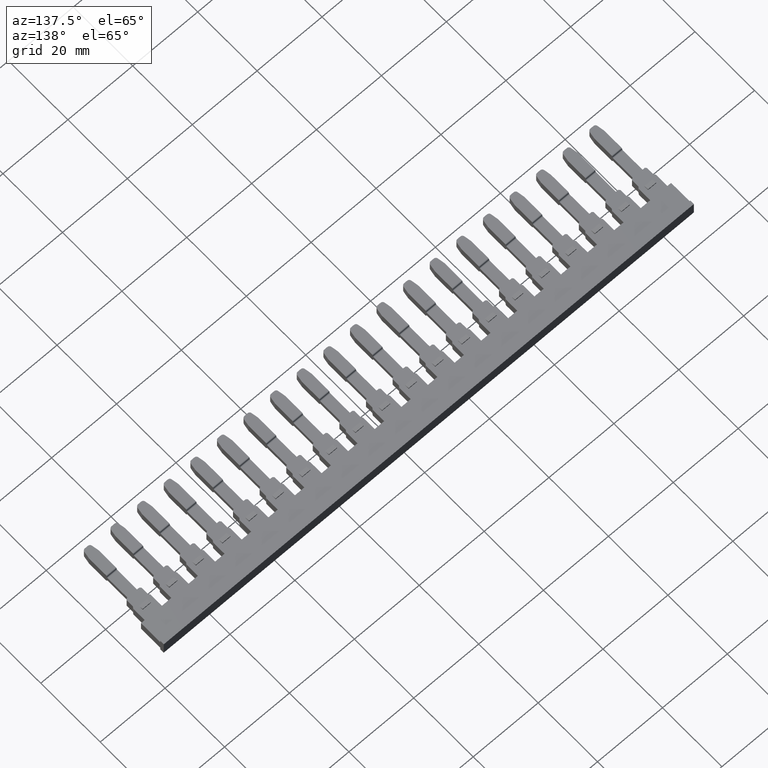
[diagram: clean part render]
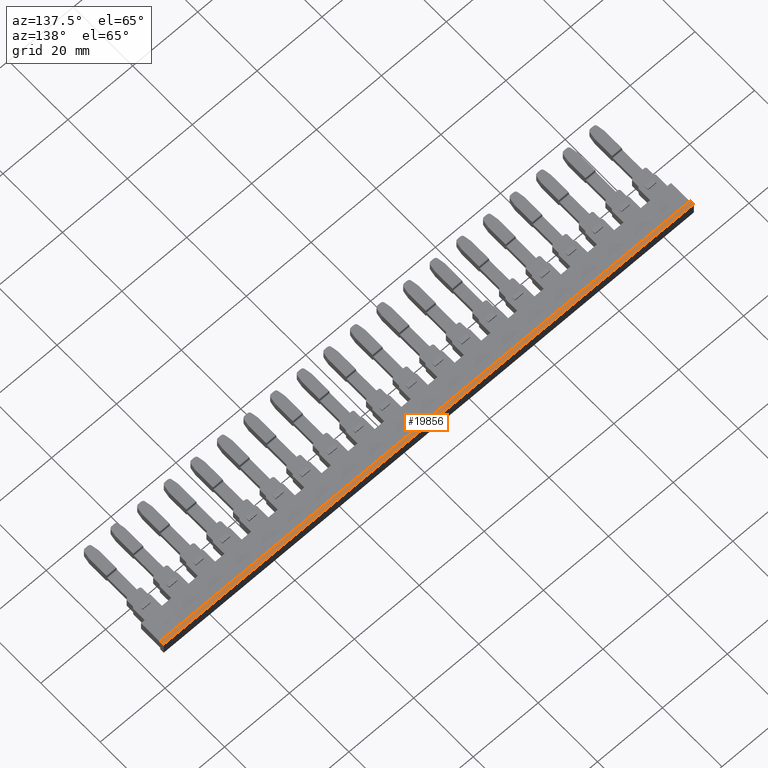
[diagram: same view with one face highlighted and labeled with its STEP entity id]
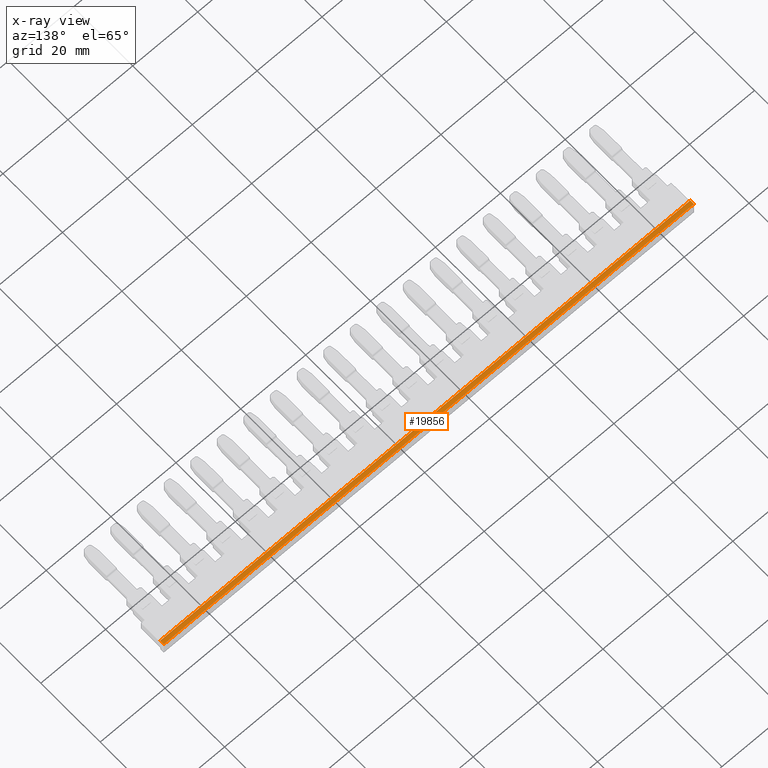
[diagram: x-ray of the same camera — body ghosted, the highlighted face saturated]
A machine part, auxiliary view. The second image highlights one B-rep face of the part: STEP entity #19856.
The next image is the same camera in x-ray: the body ghosted, the highlighted face saturated — about 0% of this face is hidden behind the body in this view.
In plain terms, the highlighted planar face has unit normal (0, 0, 1).
Its self-contained STEP definition (entity closure, byte-faithful):
#1759 = EDGE_CURVE ( 'NONE', #14234, #14112, #11842, .T. ) ;
#1796 = EDGE_CURVE ( 'NONE', #14243, #14234, #11953, .T. ) ;
#1800 = EDGE_CURVE ( 'NONE', #14243, #14134, #11969, .T. ) ;
#1851 = EDGE_CURVE ( 'NONE', #14112, #14134, #12140, .T. ) ;
#4170 = ORIENTED_EDGE ( 'NONE', *, *, #1800, .F. ) ;
#4212 = ORIENTED_EDGE ( 'NONE', *, *, #1851, .T. ) ;
#4275 = ORIENTED_EDGE ( 'NONE', *, *, #1796, .T. ) ;
#4279 = ORIENTED_EDGE ( 'NONE', *, *, #1759, .T. ) ;
#6940 = PLANE ( 'NONE',  #17208 ) ;
#6941 = FACE_OUTER_BOUND ( 'NONE', #17826, .T. ) ;
#6942 = DIRECTION ( 'NONE',  ( 0.0000000000000000000, 0.0000000000000000000, 1.000000000000000000 ) ) ;
#6971 = DIRECTION ( 'NONE',  ( 1.000000000000000000, 0.0000000000000000000, -0.0000000000000000000 ) ) ;
#6980 = CARTESIAN_POINT ( 'NONE',  ( 1130.994470802330200, 672.9078760720548200, 3.750000000000000000 ) ) ;
#9188 = CARTESIAN_POINT ( 'NONE',  ( 991.5944708023300800, 672.9078760720548200, 3.750000000000000000 ) ) ;
#9196 = CARTESIAN_POINT ( 'NONE',  ( 991.5944708023300800, 674.1078760720547500, 3.750000000000000000 ) ) ;
#9275 = CARTESIAN_POINT ( 'NONE',  ( 1154.994472239529600, 672.9078760720548200, 3.750000000000000000 ) ) ;
#9313 = CARTESIAN_POINT ( 'NONE',  ( 1154.994472239529600, 674.1078760720547500, 3.750000000000000000 ) ) ;
#11833 = DIRECTION ( 'NONE',  ( -1.000000000000000000, -0.0000000000000000000, -0.0000000000000000000 ) ) ;
#11842 = LINE ( 'NONE', #11856, #22397 ) ;
#11856 = CARTESIAN_POINT ( 'NONE',  ( 1130.994470802330200, 674.1078760720547500, 3.750000000000000000 ) ) ;
#11938 = CARTESIAN_POINT ( 'NONE',  ( 1154.994472239529600, 672.9078760720548200, 3.750000000000000000 ) ) ;
#11939 = DIRECTION ( 'NONE',  ( -0.0000000000000000000, 1.000000000000000000, 0.0000000000000000000 ) ) ;
#11953 = LINE ( 'NONE', #11938, #22379 ) ;
#11968 = CARTESIAN_POINT ( 'NONE',  ( 1130.994470802330200, 672.9078760720548200, 3.750000000000000000 ) ) ;
#11969 = LINE ( 'NONE', #11968, #22370 ) ;
#11971 = DIRECTION ( 'NONE',  ( -1.000000000000000000, -0.0000000000000000000, -0.0000000000000000000 ) ) ;
#12133 = DIRECTION ( 'NONE',  ( 0.0000000000000000000, -1.000000000000000000, -0.0000000000000000000 ) ) ;
#12140 = LINE ( 'NONE', #12143, #22081 ) ;
#12143 = CARTESIAN_POINT ( 'NONE',  ( 991.5944708023300800, 672.9078760720548200, 3.750000000000000000 ) ) ;
#14112 = VERTEX_POINT ( 'NONE', #9196 ) ;
#14134 = VERTEX_POINT ( 'NONE', #9188 ) ;
#14234 = VERTEX_POINT ( 'NONE', #9313 ) ;
#14243 = VERTEX_POINT ( 'NONE', #9275 ) ;
#17208 = AXIS2_PLACEMENT_3D ( 'NONE', #6980, #6942, #6971 ) ;
#17826 = EDGE_LOOP ( 'NONE', ( #4279, #4212, #4170, #4275 ) ) ;
#19856 = ADVANCED_FACE ( 'NONE', ( #6941 ), #6940, .T. ) ;
#22081 = VECTOR ( 'NONE', #12133, 1000.000000000000000 ) ;
#22370 = VECTOR ( 'NONE', #11971, 1000.000000000000000 ) ;
#22379 = VECTOR ( 'NONE', #11939, 1000.000000000000000 ) ;
#22397 = VECTOR ( 'NONE', #11833, 1000.000000000000000 ) ;